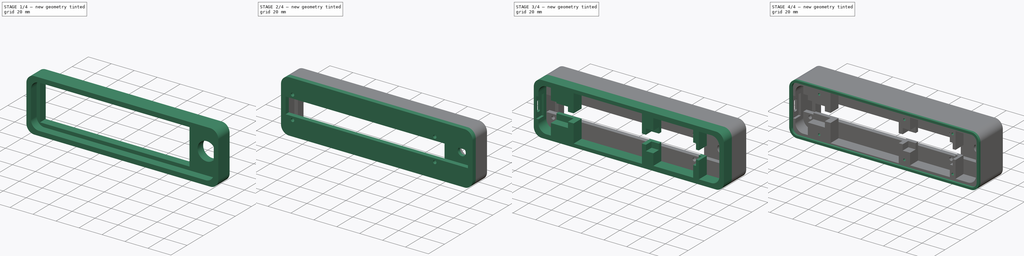
[diagram: build sequence overview — one tinted view per stage of 4, left to right]
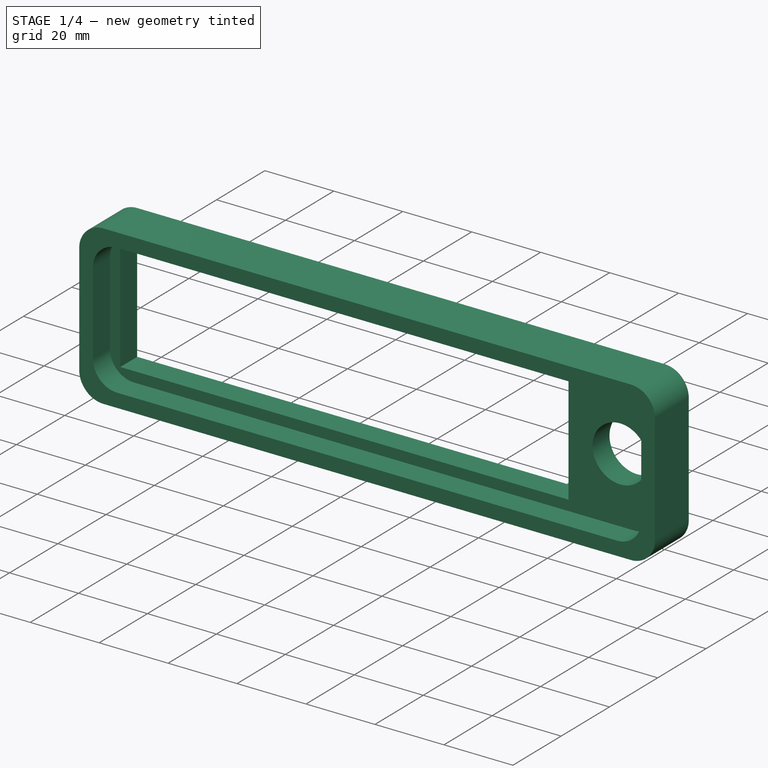
[diagram: stage 1 of 4 — iso view after this stage's code; geometry added in this stage tinted green]
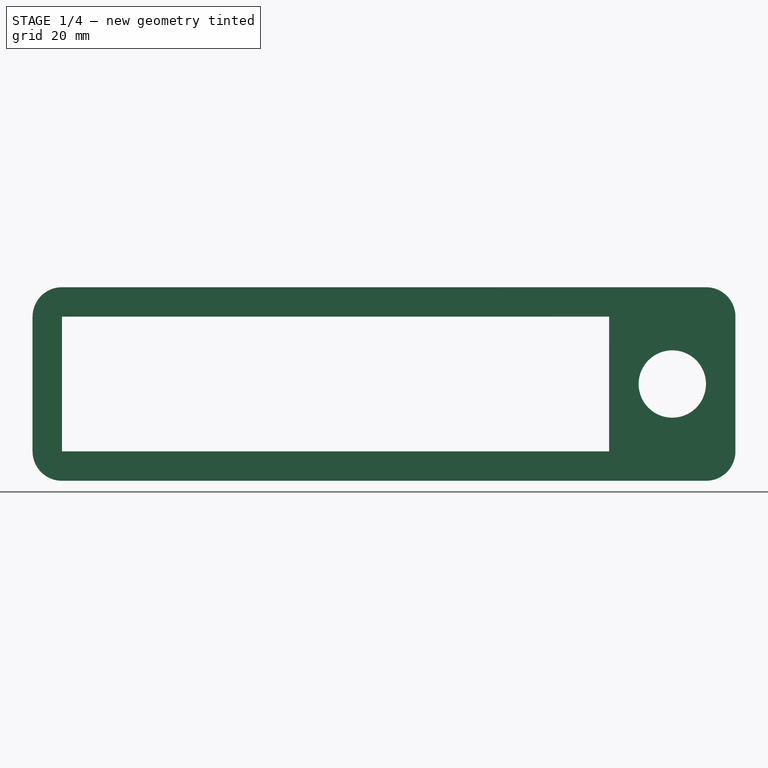
[diagram: stage 1 of 4 — front view after this stage's code; geometry added in this stage tinted green]
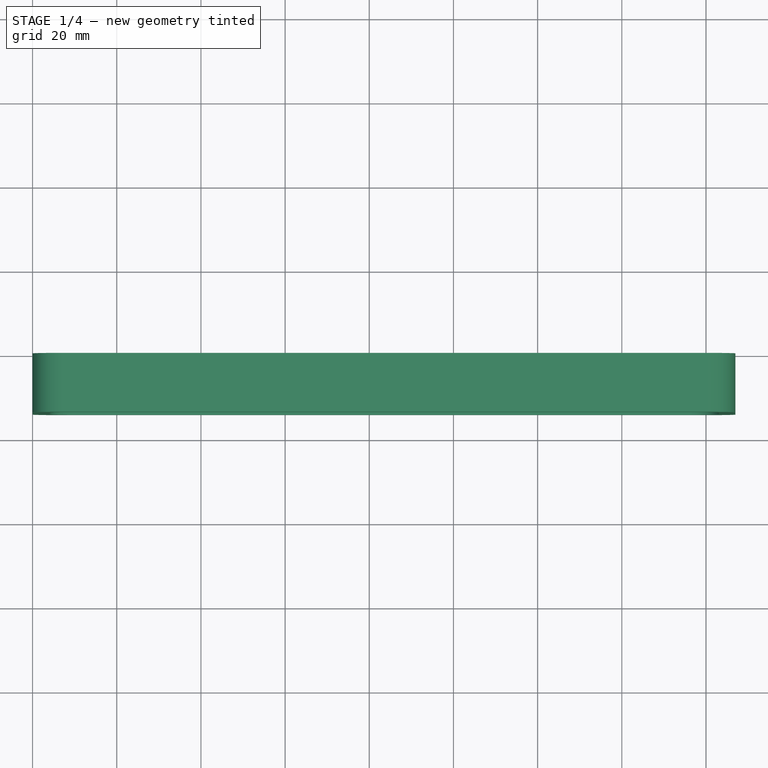
[diagram: stage 1 of 4 — top view after this stage's code; geometry added in this stage tinted green]
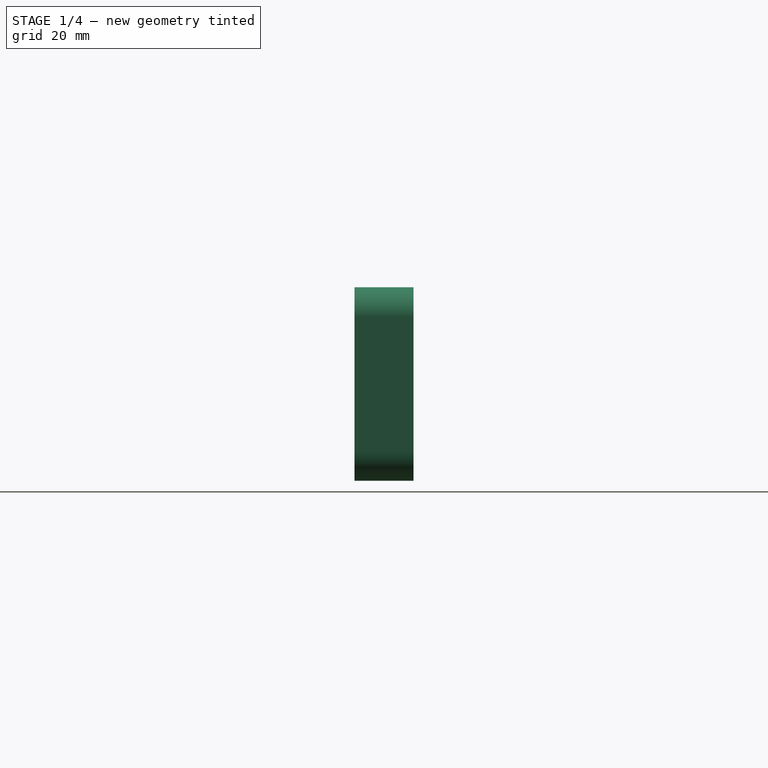
[diagram: stage 1 of 4 — right view after this stage's code; geometry added in this stage tinted green]
FCSTD DOCUMENT  (FreeCAD 0.20RUnknown)
Label: case
License: All rights reserved
LicenseURL: http://en.wikipedia.org/wiki/All_rights_reserved
objects: Sketcher::SketchObject×10, PartDesign::Pad×6, PartDesign::Pocket×3, PartDesign::Body×1
note: 29 computed .brp shape members not serialized (recipe doc carries the construction recipe); baked Part::Feature solids carry a one-line shape summary decoded from their .brp

FEATURE [Sketcher::SketchObject] Sketch
  FullyConstrained = true
  Placement = pos=(0,0,0) rot=(1,0,0;1.5708rad)
  sketch-geometry (15):
    g0: ArcOfCircle CenterX=7 CenterY=-7 CenterZ=0 NormalX=0 NormalY=0 NormalZ=1 AngleXU=0 Radius=7 StartAngle=1.5708 EndAngle=3.14159
    g1: LineSegment StartX=7 StartY=0 StartZ=0 EndX=160 EndY=0 EndZ=0
    g2: ArcOfCircle CenterX=160 CenterY=-7 CenterZ=0 NormalX=0 NormalY=0 NormalZ=1 AngleXU=0 Radius=7 StartAngle=2e-16 EndAngle=1.5708
    g3: LineSegment StartX=167 StartY=-7 StartZ=0 EndX=167 EndY=-39 EndZ=0
    g4: ArcOfCircle CenterX=160 CenterY=-39 CenterZ=0 NormalX=0 NormalY=0 NormalZ=1 AngleXU=0 Radius=7 StartAngle=4.71239 EndAngle=6.28319
    g5: LineSegment StartX=160 StartY=-46 StartZ=0 EndX=7 EndY=-46 EndZ=0
    g6: ArcOfCircle CenterX=7 CenterY=-39 CenterZ=0 NormalX=0 NormalY=0 NormalZ=1 AngleXU=0 Radius=7 StartAngle=3.14159 EndAngle=4.71239
    g7: LineSegment StartX=0 StartY=-39 StartZ=0 EndX=0 EndY=-7 EndZ=0
    g8: GeomPoint X=0 Y=0 Z=0
    g9: GeomPoint X=167 Y=-46 Z=0
    g10: LineSegment StartX=7 StartY=-7 StartZ=0 EndX=137 EndY=-7 EndZ=0
    g11: LineSegment StartX=137 StartY=-7 StartZ=0 EndX=137 EndY=-39 EndZ=0
    g12: LineSegment StartX=137 StartY=-39 StartZ=0 EndX=7 EndY=-39 EndZ=0
    g13: LineSegment StartX=7 StartY=-39 StartZ=0 EndX=7 EndY=-7 EndZ=0
    g14: Circle CenterX=152 CenterY=-23 CenterZ=0 NormalX=0 NormalY=0 NormalZ=1 AngleXU=0 Radius=8
  constraints (38):
    c: Tangent(g0,g1) = 1.5708
    c: Tangent(g1,g2) = 1.5708
    c: Tangent(g2,g3) = 1.5708
    c: Tangent(g3,g4) = 1.5708
    c: Tangent(g4,g5) = 1.5708
    c: Tangent(g5,g6) = 1.5708
    c: Tangent(g6,g7) = 1.5708
    c: Tangent(g7,g0) = 1.5708
    c: Horizontal(g1)
    c: Horizontal(g5)
    c: Vertical(g3)
    c: Vertical(g7)
    c: Equal(g0,g2)
    c: Equal(g2,g4)
    c: Equal(g4,g6)
    c: PointOnObject(g8,g1)
    c: PointOnObject(g8,g7)
    c: PointOnObject(g9,g3)
    c: PointOnObject(g9,g5)
    c: Coincident(g10,g11)
    c: Coincident(g11,g12)
    c: Coincident(g12,g13)
    c: Coincident(g13,g10)
    c: Horizontal(g10)
    c: Horizontal(g12)
    c: Vertical(g11)
    c: Vertical(g13)
    c: DistanceY(g12,g10) = 32
    c: DistanceX(g10,g10) = 130
    c: DistanceY(g10,g0) = 7
    c: DistanceY(g5,g12) = 7
    c: DistanceX(g6,g12) = 7
    c: Radius(g0) = 7
    c: Diameter(g14) = 16
    c: DistanceX(g10,g14) = 15
    c: DistanceX(g14,g2) = 15
    c: DistanceY(g14,g2) = 16
    c: Coincident(g8,g-1)
FEATURE [PartDesign::Pad] Pad
  Direction = (0,-1,2e-16)
  Length = 7
  Length2 = 10
  Placement = pos=(0,0,0) rot=(1,0,0;1.5708rad)
  Profile = -> Sketch
  ReferenceAxis = -> Sketch [N_Axis]
  Type = 0
FEATURE [Sketcher::SketchObject] Sketch001
  FullyConstrained = true
  MapMode = 5
  Placement = pos=(0,-7,1.5e-15) rot=(1,0,0;1.5708rad)
  Support = -> [Pad]
FEATURE [Sketcher::SketchObject] Sketch002
  ExternalGeometry = -> [Pad]
  FullyConstrained = true
  MapMode = 5
  Placement = pos=(0,-7,1.5e-15) rot=(1,0,0;1.5708rad)
  Support = -> [Pad]
  sketch-geometry (20):
    g0: ArcOfCircle CenterX=7 CenterY=-7 CenterZ=0 NormalX=0 NormalY=0 NormalZ=1 AngleXU=0 Radius=7 StartAngle=1.5708 EndAngle=3.14159
    g1: LineSegment StartX=7 StartY=0 StartZ=0 EndX=160 EndY=0 EndZ=0
    g2: ArcOfCircle CenterX=160 CenterY=-7 CenterZ=0 NormalX=0 NormalY=0 NormalZ=1 AngleXU=0 Radius=7 StartAngle=1e-16 EndAngle=1.5708
    g3: LineSegment StartX=167 StartY=-7 StartZ=0 EndX=167 EndY=-39 EndZ=0
    g4: ArcOfCircle CenterX=160 CenterY=-39 CenterZ=0 NormalX=0 NormalY=0 NormalZ=1 AngleXU=0 Radius=7 StartAngle=4.71239 EndAngle=6.28319
    g5: LineSegment StartX=160 StartY=-46 StartZ=0 EndX=7 EndY=-46 EndZ=0
    g6: ArcOfCircle CenterX=7 CenterY=-39 CenterZ=0 NormalX=0 NormalY=0 NormalZ=1 AngleXU=0 Radius=7 StartAngle=3.14159 EndAngle=4.71239
    g7: LineSegment StartX=0 StartY=-39 StartZ=0 EndX=0 EndY=-7 EndZ=0
    g8: GeomPoint X=0 Y=0 Z=0
    g9: GeomPoint X=167 Y=-46 Z=0
    g10: ArcOfCircle CenterX=11 CenterY=-11 CenterZ=0 NormalX=0 NormalY=0 NormalZ=1 AngleXU=0 Radius=7 StartAngle=1.5708 EndAngle=3.14159
    g11: LineSegment StartX=11 StartY=-4 StartZ=0 EndX=156 EndY=-4 EndZ=0
    g12: ArcOfCircle CenterX=156 CenterY=-11 CenterZ=0 NormalX=0 NormalY=0 NormalZ=1 AngleXU=0 Radius=7 StartAngle=2e-16 EndAngle=1.5708
    g13: LineSegment StartX=163 StartY=-11 StartZ=0 EndX=163 EndY=-35 EndZ=0
    g14: ArcOfCircle CenterX=156 CenterY=-35 CenterZ=0 NormalX=0 NormalY=0 NormalZ=1 AngleXU=0 Radius=7 StartAngle=4.71239 EndAngle=6.28319
    g15: LineSegment StartX=156 StartY=-42 StartZ=0 EndX=11 EndY=-42 EndZ=0
    g16: ArcOfCircle CenterX=11 CenterY=-35 CenterZ=0 NormalX=0 NormalY=0 NormalZ=1 AngleXU=0 Radius=7 StartAngle=3.14159 EndAngle=4.71239
    g17: LineSegment StartX=4 StartY=-35 StartZ=0 EndX=4 EndY=-11 EndZ=0
    g18: GeomPoint X=4 Y=-4 Z=0
    g19: GeomPoint X=163 Y=-42 Z=0
  constraints (46):
    c: Tangent(g0,g1) = 1.5708
    c: Tangent(g1,g2) = 1.5708
    c: Tangent(g2,g3) = 1.5708
    c: Tangent(g3,g4) = 1.5708
    c: Tangent(g4,g5) = 1.5708
    c: Tangent(g5,g6) = 1.5708
    c: Tangent(g6,g7) = 1.5708
    c: Tangent(g7,g0) = 1.5708
    c: Horizontal(g1)
    c: Horizontal(g5)
    c: Vertical(g3)
    c: Vertical(g7)
    c: Equal(g0,g2)
    c: Equal(g2,g4)
    c: Equal(g4,g6)
    c: PointOnObject(g8,g1)
    c: PointOnObject(g8,g7)
    c: PointOnObject(g9,g3)
    c: PointOnObject(g9,g5)
    c: Coincident(g8,g-1)
    c: Radius(g4) = 7
    c: Coincident(g4,g-3)
    c: Tangent(g10,g11) = 1.5708
    c: Tangent(g11,g12) = 1.5708
    c: Tangent(g12,g13) = 1.5708
    c: Tangent(g13,g14) = 1.5708
    c: Tangent(g14,g15) = 1.5708
    c: Tangent(g15,g16) = 1.5708
    c: Tangent(g16,g17) = 1.5708
    c: Tangent(g17,g10) = 1.5708
    c: Horizontal(g11)
    c: Horizontal(g15)
    c: Vertical(g13)
    c: Vertical(g17)
    c: Equal(g10,g12)
    c: Equal(g12,g14)
    c: Equal(g14,g16)
    c: PointOnObject(g18,g11)
    c: PointOnObject(g18,g17)
    c: PointOnObject(g19,g13)
    c: PointOnObject(g19,g15)
    c: Radius(g14) = 7
    c: DistanceX(g13,g3) = 4
    c: DistanceY(g4,g14) = 4
    c: DistanceY(g10,g0) = 4
    c: DistanceX(g0,g10) = 4
FEATURE [PartDesign::Pad] Pad001
  BaseFeature = -> Pad
  Direction = (0,-1,4e-16)
  Length = 7
  Length2 = 10
  Placement = pos=(0,0,0) rot=(1,0,0;1.5708rad)
  Profile = -> Sketch002
  ReferenceAxis = -> Sketch002 [N_Axis]
  Type = 0
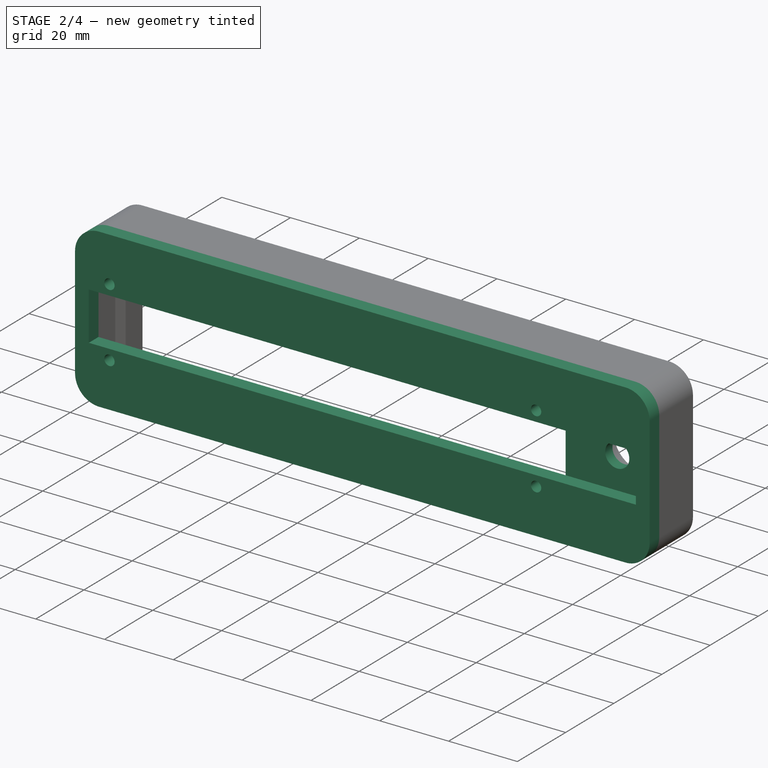
[diagram: stage 2 of 4 — iso view after this stage's code; geometry added in this stage tinted green]
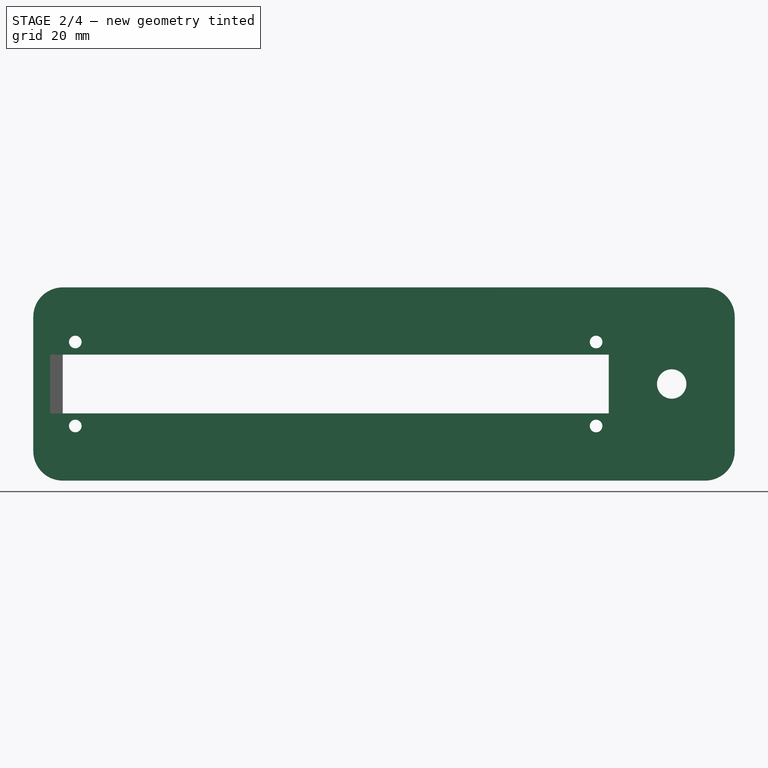
[diagram: stage 2 of 4 — front view after this stage's code; geometry added in this stage tinted green]
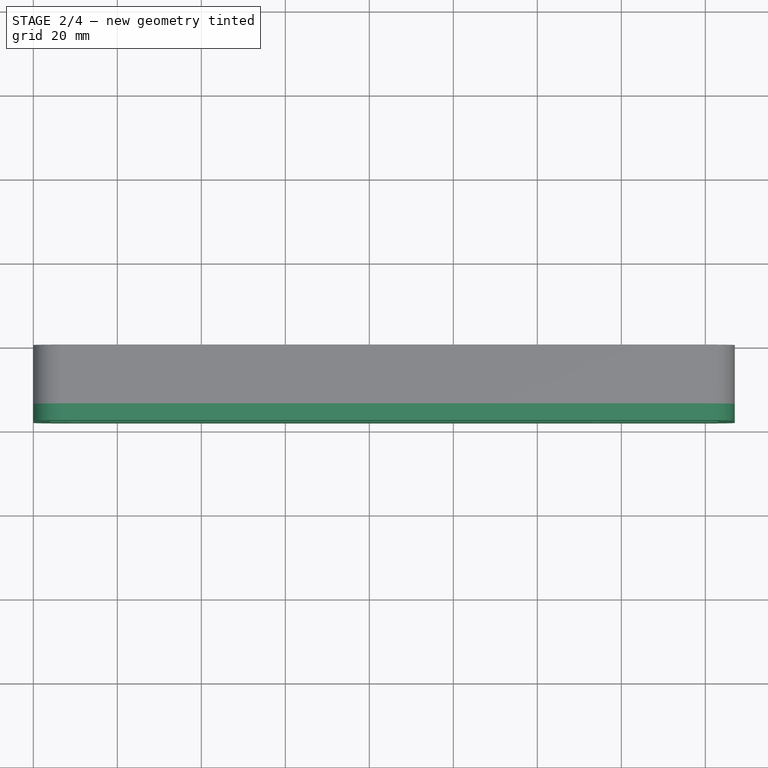
[diagram: stage 2 of 4 — top view after this stage's code; geometry added in this stage tinted green]
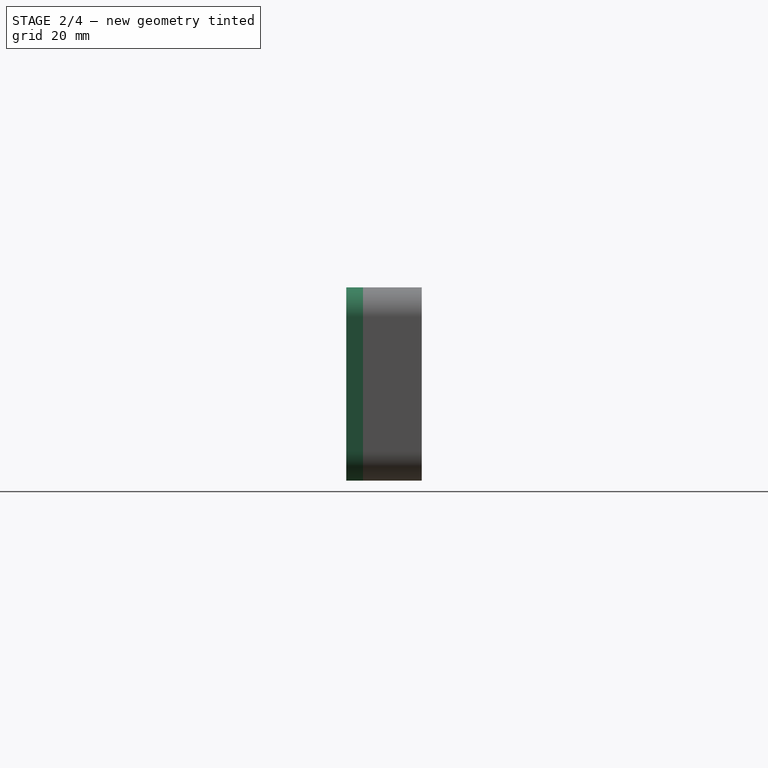
[diagram: stage 2 of 4 — right view after this stage's code; geometry added in this stage tinted green]
FEATURE [Sketcher::SketchObject] Sketch003
  ExternalGeometry = -> [Pad001]
  FullyConstrained = true
  MapMode = 5
  Placement = pos=(0,-7,1.5e-15) rot=(1,0,0;1.5708rad)
  Support = -> [Pad001]
  sketch-geometry (5):
    g0: LineSegment StartX=163 StartY=-11 StartZ=0 EndX=137 EndY=-11 EndZ=0
    g1: LineSegment StartX=137 StartY=-11 StartZ=0 EndX=137 EndY=-35 EndZ=0
    g2: LineSegment StartX=137 StartY=-35 StartZ=0 EndX=163 EndY=-35 EndZ=0
    g3: LineSegment StartX=163 StartY=-35 StartZ=0 EndX=163 EndY=-11 EndZ=0
    g4: Circle CenterX=152 CenterY=-23 CenterZ=0 NormalX=0 NormalY=0 NormalZ=1 AngleXU=0 Radius=3.5
  constraints (12):
    c: Coincident(g0,g1)
    c: Coincident(g1,g2)
    c: Coincident(g2,g3)
    c: Coincident(g3,g0)
    c: Horizontal(g0)
    c: Horizontal(g2)
    c: Vertical(g1)
    c: Coincident(g0,g-3)
    c: PointOnObject(g1,g-4)
    c: Coincident(g2,g-3)
    c: Coincident(g4,g-5)
    c: Diameter(g4) = 7
FEATURE [PartDesign::Pad] Pad002
  BaseFeature = -> Pad001
  Direction = (0,-1,4e-16)
  Length = 3
  Length2 = 10
  Placement = pos=(0,0,0) rot=(1,0,0;1.5708rad)
  Profile = -> Sketch003
  ReferenceAxis = -> Sketch003 [N_Axis]
  Type = 0
FEATURE [Sketcher::SketchObject] Sketch004
  ExternalGeometry = -> [Pad002]
  FullyConstrained = true
  MapMode = 5
  Placement = pos=(0,-14,6.3e-15) rot=(1,0,0;1.5708rad)
  Support = -> [Pad002]
  sketch-geometry (18):
    g0: ArcOfCircle CenterX=7 CenterY=-7 CenterZ=0 NormalX=0 NormalY=0 NormalZ=1 AngleXU=0 Radius=7 StartAngle=1.5708 EndAngle=3.14159
    g1: LineSegment StartX=7 StartY=3.6e-15 StartZ=0 EndX=160 EndY=3.6e-15 EndZ=0
    g2: ArcOfCircle CenterX=160 CenterY=-7 CenterZ=0 NormalX=0 NormalY=0 NormalZ=1 AngleXU=0 Radius=7 StartAngle=1e-16 EndAngle=1.5708
    g3: LineSegment StartX=167 StartY=-7 StartZ=0 EndX=167 EndY=-39 EndZ=0
    g4: ArcOfCircle CenterX=160 CenterY=-39 CenterZ=0 NormalX=0 NormalY=0 NormalZ=1 AngleXU=0 Radius=7 StartAngle=4.71239 EndAngle=6.28319
    g5: LineSegment StartX=160 StartY=-46 StartZ=0 EndX=7 EndY=-46 EndZ=0
    g6: ArcOfCircle CenterX=7 CenterY=-39 CenterZ=0 NormalX=0 NormalY=0 NormalZ=1 AngleXU=0 Radius=7 StartAngle=3.14159 EndAngle=4.71239
    g7: LineSegment StartX=-2.7e-15 StartY=-39 StartZ=0 EndX=-2.7e-15 EndY=-7 EndZ=0
    g8: GeomPoint X=-2.7e-15 Y=3.6e-15 Z=0
    g9: GeomPoint X=167 Y=-46 Z=0
    g10: LineSegment StartX=4 StartY=-16 StartZ=0 EndX=163 EndY=-16 EndZ=0
    g11: LineSegment StartX=163 StartY=-16 StartZ=0 EndX=163 EndY=-30 EndZ=0
    g12: LineSegment StartX=163 StartY=-30 StartZ=0 EndX=4 EndY=-30 EndZ=0
    g13: LineSegment StartX=4 StartY=-30 StartZ=0 EndX=4 EndY=-16 EndZ=0
    g14: Circle CenterX=10 CenterY=-13 CenterZ=0 NormalX=0 NormalY=0 NormalZ=1 AngleXU=0 Radius=1.5
    g15: Circle CenterX=10 CenterY=-33 CenterZ=0 NormalX=0 NormalY=0 NormalZ=1 AngleXU=0 Radius=1.5
    g16: Circle CenterX=134 CenterY=-13 CenterZ=0 NormalX=0 NormalY=0 NormalZ=1 AngleXU=0 Radius=1.5
    g17: Circle CenterX=134 CenterY=-33 CenterZ=0 NormalX=0 NormalY=0 NormalZ=1 AngleXU=0 Radius=1.5
  constraints (45):
    c: Tangent(g0,g1) = 1.5708
    c: Tangent(g1,g2) = 1.5708
    c: Tangent(g2,g3) = 1.5708
    c: Tangent(g3,g4) = 1.5708
    c: Tangent(g4,g5) = 1.5708
    c: Tangent(g5,g6) = 1.5708
    c: Tangent(g6,g7) = 1.5708
    c: Tangent(g7,g0) = 1.5708
    c: Horizontal(g1)
    c: Horizontal(g5)
    c: Vertical(g7)
    c: Equal(g0,g2)
    c: Equal(g2,g4)
    c: Equal(g4,g6)
    c: PointOnObject(g8,g1)
    c: PointOnObject(g8,g7)
    c: PointOnObject(g9,g3)
    c: PointOnObject(g9,g5)
    c: Coincident(g2,g-3)
    c: Coincident(g3,g-3)
    c: Coincident(g-4,g5)
    c: Coincident(g10,g11)
    c: Coincident(g11,g12)
    c: Coincident(g12,g13)
    c: Coincident(g13,g10)
    c: Horizontal(g10)
    c: Horizontal(g12)
    c: Vertical(g11)
    c: Vertical(g13)
    c: DistanceY(g10,g0) = 16
    c: DistanceY(g5,g12) = 16
    c: PointOnObject(g10,g-5)
    c: PointOnObject(g10,g-6)
    c: Diameter(g14) = 3
    c: DistanceX(g0,g14) = 3
    c: DistanceY(g14,g0) = 6
    c: Diameter(g15) = 3
    c: DistanceX(g6,g15) = 3
    c: DistanceY(g6,g15) = 6
    c: Diameter(g16) = 3
    c: Diameter(g17) = 3
    c: DistanceY(g16,g-7) = 6
    c: DistanceY(g-8,g17) = 6
    c: DistanceX(g17,g-8) = 3
    c: DistanceX(g16,g-7) = 3
FEATURE [PartDesign::Pad] Pad003
  BaseFeature = -> Pad002
  Direction = (0,-1,4e-16)
  Length = 4
  Length2 = 10
  Placement = pos=(0,0,0) rot=(1,0,0;1.5708rad)
  Profile = -> Sketch004
  ReferenceAxis = -> Sketch004 [N_Axis]
  Type = 0
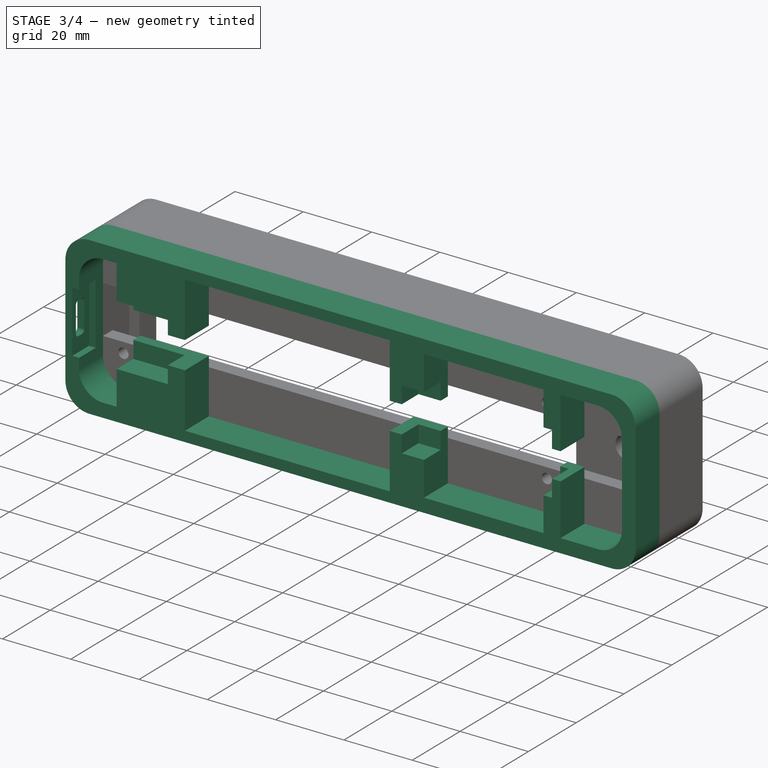
[diagram: stage 3 of 4 — iso view after this stage's code; geometry added in this stage tinted green]
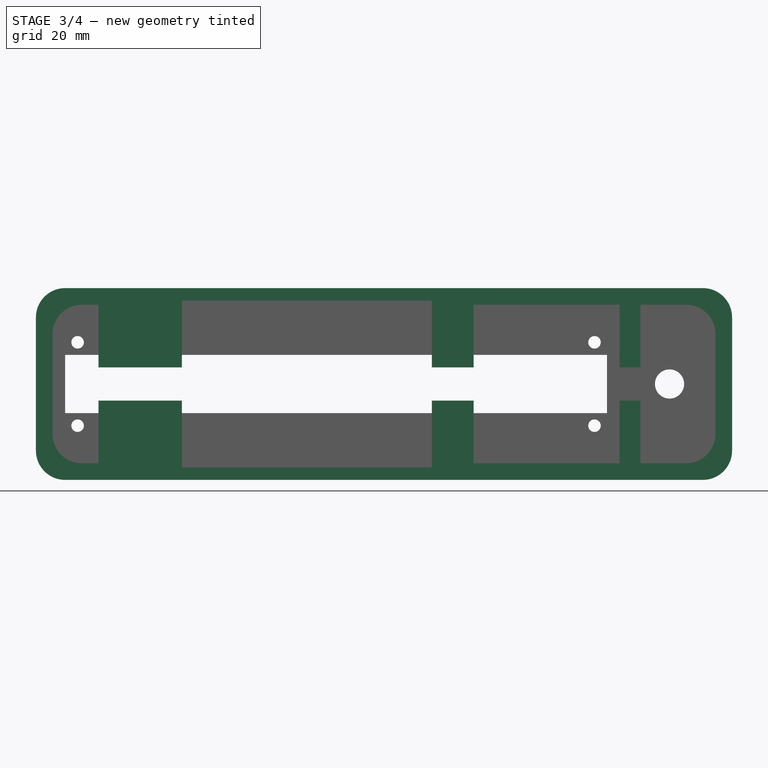
[diagram: stage 3 of 4 — front view after this stage's code; geometry added in this stage tinted green]
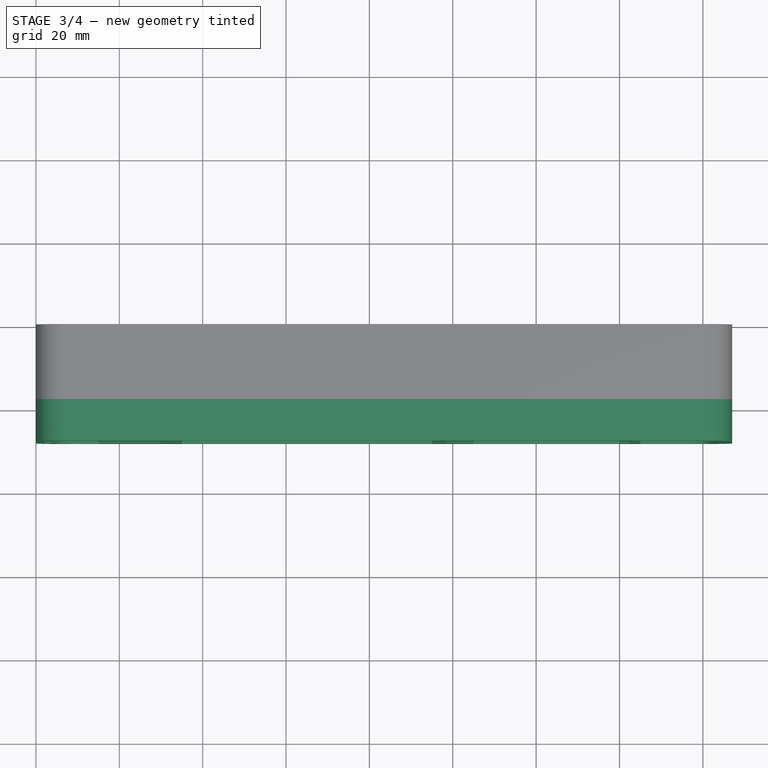
[diagram: stage 3 of 4 — top view after this stage's code; geometry added in this stage tinted green]
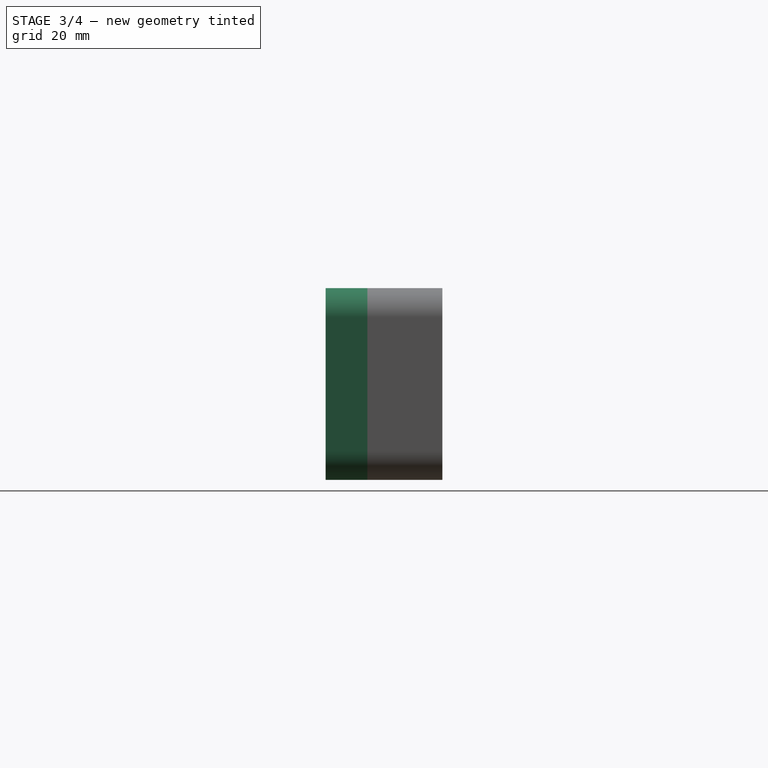
[diagram: stage 3 of 4 — right view after this stage's code; geometry added in this stage tinted green]
FEATURE [Sketcher::SketchObject] Sketch005
  ExternalGeometry = -> [Pad003]
  FullyConstrained = false
  MapMode = 5
  Placement = pos=(0,-18,7.6e-15) rot=(1,0,0;1.5708rad)
  Support = -> [Pad003]
  sketch-geometry (44):
    g0: ArcOfCircle CenterX=7 CenterY=-7 CenterZ=0 NormalX=0 NormalY=0 NormalZ=1 AngleXU=0 Radius=7 StartAngle=1.5708 EndAngle=3.14159
    g1: LineSegment StartX=7 StartY=-9e-16 StartZ=0 EndX=160 EndY=-9e-16 EndZ=0
    g2: ArcOfCircle CenterX=160 CenterY=-7 CenterZ=0 NormalX=0 NormalY=0 NormalZ=1 AngleXU=0 Radius=7 StartAngle=1e-16 EndAngle=1.5708
    g3: LineSegment StartX=167 StartY=-7 StartZ=0 EndX=167 EndY=-39 EndZ=0
    g4: ArcOfCircle CenterX=160 CenterY=-39 CenterZ=0 NormalX=0 NormalY=0 NormalZ=1 AngleXU=0 Radius=7 StartAngle=4.71239 EndAngle=6.28319
    g5: LineSegment StartX=160 StartY=-46 StartZ=0 EndX=7 EndY=-46 EndZ=0
    g6: ArcOfCircle CenterX=7 CenterY=-39 CenterZ=0 NormalX=0 NormalY=0 NormalZ=1 AngleXU=0 Radius=7 StartAngle=3.14159 EndAngle=4.71239
    g7: LineSegment StartX=-2.7e-15 StartY=-39 StartZ=0 EndX=-2.7e-15 EndY=-7 EndZ=0
    g8: GeomPoint X=-2.7e-15 Y=-9e-16 Z=0
    g9: GeomPoint X=167 Y=-46 Z=0
    g10: ArcOfCircle CenterX=11 CenterY=-11 CenterZ=0 NormalX=0 NormalY=0 NormalZ=1 AngleXU=0 Radius=7 StartAngle=1.5708 EndAngle=3.14159
    g11: ArcOfCircle CenterX=11 CenterY=-35 CenterZ=0 NormalX=0 NormalY=0 NormalZ=1 AngleXU=0 Radius=7 StartAngle=3.14159 EndAngle=4.71239
    g12: LineSegment StartX=4 StartY=-35 StartZ=0 EndX=4 EndY=-11 EndZ=0
    g13: GeomPoint X=4 Y=-4 Z=0
    g14: GeomPoint X=163 Y=-42 Z=0
    g15: LineSegment StartX=11 StartY=-4 StartZ=0 EndX=15 EndY=-4 EndZ=0
    g16: LineSegment StartX=15 StartY=-4 StartZ=0 EndX=15 EndY=-19 EndZ=0
    g17: LineSegment StartX=11 StartY=-42 StartZ=0 EndX=15 EndY=-42 EndZ=0
    g18: LineSegment StartX=15 StartY=-42 StartZ=0 EndX=15 EndY=-27 EndZ=0
    g19: LineSegment StartX=163 StartY=-11 StartZ=0 EndX=163 EndY=-35 EndZ=0
    g20: ArcOfCircle CenterX=156 CenterY=-11 CenterZ=0 NormalX=0 NormalY=0 NormalZ=1 AngleXU=0 Radius=7 StartAngle=0 EndAngle=1.5708
    g21: ArcOfCircle CenterX=156 CenterY=-35 CenterZ=0 NormalX=0 NormalY=0 NormalZ=1 AngleXU=0 Radius=7 StartAngle=4.71239 EndAngle=6.28319
    g22: LineSegment StartX=15 StartY=-19 StartZ=0 EndX=35 EndY=-19 EndZ=0
    g23: LineSegment StartX=95 StartY=-19 StartZ=0 EndX=105 EndY=-19 EndZ=0
    g24: LineSegment StartX=105 StartY=-19 StartZ=0 EndX=105 EndY=-4 EndZ=0
    g25: LineSegment StartX=95 StartY=-27 StartZ=0 EndX=105 EndY=-27 EndZ=0
    g26: LineSegment StartX=105 StartY=-27 StartZ=0 EndX=105 EndY=-42 EndZ=0
    g27: LineSegment StartX=15 StartY=-27 StartZ=0 EndX=35 EndY=-27 EndZ=0
    g28: LineSegment StartX=35 StartY=-3 StartZ=0 EndX=95 EndY=-3 EndZ=0
    g29: LineSegment StartX=35 StartY=-43 StartZ=0 EndX=95 EndY=-43 EndZ=0
    g30: LineSegment StartX=35 StartY=-3 StartZ=0 EndX=35 EndY=-19 EndZ=0
    g31: LineSegment StartX=35 StartY=-27 StartZ=0 EndX=35 EndY=-43 EndZ=0
    g32: LineSegment StartX=95 StartY=-3 StartZ=0 EndX=95 EndY=-19 EndZ=0
    g33: LineSegment StartX=95 StartY=-27 StartZ=0 EndX=95 EndY=-43 EndZ=0
    g34: LineSegment StartX=105 StartY=-4 StartZ=0 EndX=140 EndY=-4 EndZ=0
    g35: LineSegment StartX=140 StartY=-4 StartZ=0 EndX=140 EndY=-19 EndZ=0
    g36: LineSegment StartX=140 StartY=-19 StartZ=0 EndX=145 EndY=-19 EndZ=0
    g37: LineSegment StartX=145 StartY=-19 StartZ=0 EndX=145 EndY=-4 EndZ=0
    g38: LineSegment StartX=145 StartY=-4 StartZ=0 EndX=156 EndY=-4 EndZ=0
    g39: LineSegment StartX=105 StartY=-42 StartZ=0 EndX=140 EndY=-42 EndZ=0
    g40: LineSegment StartX=140 StartY=-42 StartZ=0 EndX=140 EndY=-27 EndZ=0
    g41: LineSegment StartX=140 StartY=-27 StartZ=0 EndX=145 EndY=-27 EndZ=0
    g42: LineSegment StartX=145 StartY=-27 StartZ=0 EndX=145 EndY=-42 EndZ=0
    g43: LineSegment StartX=145 StartY=-42 StartZ=0 EndX=156 EndY=-42 EndZ=0
  constraints (118):
    c: Tangent(g0,g1) = 1.5708
    c: Tangent(g1,g2) = 1.5708
    c: Tangent(g2,g3) = 1.5708
    c: Tangent(g3,g4) = 1.5708
    c: Tangent(g4,g5) = 1.5708
    c: Tangent(g5,g6) = 1.5708
    c: Tangent(g6,g7) = 1.5708
    c: Tangent(g7,g0) = 1.5708
    c: Horizontal(g1)
    c: Horizontal(g5)
    c: Vertical(g7)
    c: Equal(g2,g4)
    c: Equal(g4,g6)
    c: PointOnObject(g8,g1)
    c: PointOnObject(g8,g7)
    c: PointOnObject(g9,g3)
    c: PointOnObject(g9,g5)
    c: Radius(g0) = 7
    c: Coincident(g2,g-3)
    c: Coincident(g3,g-3)
    c: Coincident(g0,g-5)
    c: Tangent(g11,g12) = 1.5708
    c: Tangent(g12,g10) = 1.5708
    c: Vertical(g12)
    c: PointOnObject(g13,g12)
    c: DistanceY(g4,g21) = 4
    c: DistanceX(g0,g10) = 4
    c: Tangent(g10,g15) = 1.5708
    c: Coincident(g15,g16)
    c: Vertical(g16)
    c: Tangent(g11,g17) = -1.5708
    c: Coincident(g17,g18)
    c: Vertical(g18)
    c: Equal(g15,g17)
    c: DistanceY(g16,g16) = 15
    c: DistanceX(g16,g18) = 0
    c: DistanceY(g10,g0) = 4
    c: Horizontal(g15)
    c: DistanceX(g0,g15) = 15
    c: Vertical(g19)
    c: Coincident(g20,g19)
    c: Radius(g20) = 7
    c: DistanceY(g20,g19) = 0
    c: DistanceX(g20,g20) = 0
    c: Coincident(g21,g19)
    c: Radius(g21) = 7
    c: DistanceY(g21,g19) = 0
    c: DistanceX(g19,g2) = 4
    c: DistanceY(g17,g11) = 0
    c: Radius(g11) = 7
    c: Coincident(g22,g16)
    c: Horizontal(g22)
    c: DistanceX(g22,g22) = 20
    c: Coincident(g23,g24)
    c: Vertical(g24)
    c: Horizontal(g23)
    c: DistanceX(g21,g21) = 0
    c: Horizontal(g25)
    c: Coincident(g25,g26)
    c: Vertical(g26)
    c: Coincident(g27,g18)
    c: Horizontal(g27)
    c: DistanceY(g5,g11) = 4
    c: Equal(g22,g27)
    c: Equal(g23,g25)
    c: DistanceX(g23,g23) = 10
    c: DistanceX(g28,g28) = 60
    c: Horizontal(g28)
    c: Horizontal(g29)
    c: DistanceY(g29,g28) = 40  'Battery H'
    c: Coincident(g30,g28)
    c: Coincident(g30,g22)
    c: Coincident(g31,g27)
    c: Coincident(g31,g29)
    c: Vertical(g31)
    c: Vertical(g30)
    c: Coincident(g32,g28)
    c: Coincident(g32,g23)
    c: Coincident(g33,g25)
    c: Coincident(g33,g29)
    c: Vertical(g32)
    c: Vertical(g33)
    c: Equal(g32,g33)
    c: Equal(g24,g26)
    c: Equal(g19,g12)
    c: Equal(g30,g31)
    c: Equal(g28,g29)
    c: Equal(g31,g33)
    c: Coincident(g24,g34)
    c: Horizontal(g34)
    c: Coincident(g34,g35)
    c: Vertical(g35)
    c: Coincident(g35,g36)
    c: Horizontal(g36)
    c: Coincident(g36,g37)
    c: Vertical(g37)
    c: Coincident(g37,g38)
    c: Coincident(g38,g20)
    c: Horizontal(g38)
    c: Coincident(g26,g39)
    c: Horizontal(g39)
    c: Coincident(g39,g40)
    c: Vertical(g40)
    c: Coincident(g40,g41)
    c: Horizontal(g41)
    c: Coincident(g41,g42)
    c: Vertical(g42)
    c: Coincident(g42,g43)
    c: Coincident(g43,g21)
    c: Horizontal(g43)
    c: Equal(g35,g40)
    c: Equal(g36,g41)
    c: Equal(g34,g39)
    c: Equal(g18,g16)
    c: DistanceX(g36,g36) = 5
    c: DistanceX(g34,g34) = 35
    c: Equal(g24,g35)
    c: Equal(g35,g37)
FEATURE [PartDesign::Pad] Pad004
  BaseFeature = -> Pad003
  Direction = (0,-1,4e-16)
  Length = 10
  Length2 = 10
  Placement = pos=(0,0,0) rot=(1,0,0;1.5708rad)
  Profile = -> Sketch005
  ReferenceAxis = -> Sketch005 [N_Axis]
  Type = 0
FEATURE [Sketcher::SketchObject] Sketch006
  ExternalGeometry = -> [Pad004]
  FullyConstrained = true
  MapMode = 5
  Placement = pos=(0,-28,1.59e-14) rot=(1,0,0;1.5708rad)
  Support = -> [Pad004]
  sketch-geometry (14):
    g0: LineSegment StartX=2 StartY=-14 StartZ=0 EndX=30 EndY=-14 EndZ=0
    g1: LineSegment StartX=30 StartY=-32 StartZ=0 EndX=2 EndY=-32 EndZ=0
    g2: LineSegment StartX=2 StartY=-32 StartZ=0 EndX=2 EndY=-14 EndZ=0
    g3: LineSegment StartX=98.5 StartY=-14 StartZ=0 EndX=142.5 EndY=-14 EndZ=0
    g4: LineSegment StartX=142.5 StartY=-32 StartZ=0 EndX=98.5 EndY=-32 EndZ=0
    g5: LineSegment StartX=98.5 StartY=-32 StartZ=0 EndX=98.5 EndY=-14 EndZ=0
    g6: LineSegment StartX=142.5 StartY=-14 StartZ=0 EndX=142.5 EndY=-23 EndZ=0
    g7: LineSegment StartX=142.5 StartY=-23 StartZ=0 EndX=142.5 EndY=-32 EndZ=0
    g8: LineSegment StartX=140 StartY=-19 StartZ=0 EndX=140 EndY=-23 EndZ=0
    g9: LineSegment StartX=140 StartY=-23 StartZ=0 EndX=140 EndY=-27 EndZ=0
    g10: LineSegment StartX=35 StartY=-19 StartZ=0 EndX=35 EndY=-23 EndZ=0
    g11: LineSegment StartX=35 StartY=-23 StartZ=0 EndX=35 EndY=-27 EndZ=0
    g12: LineSegment StartX=30 StartY=-14 StartZ=0 EndX=30 EndY=-23 EndZ=0
    g13: LineSegment StartX=30 StartY=-23 StartZ=0 EndX=30 EndY=-32 EndZ=0
  constraints (40):
    c: Coincident(g0,g12)
    c: Coincident(g13,g1)
    c: Coincident(g1,g2)
    c: Coincident(g2,g0)
    c: Horizontal(g0)
    c: Horizontal(g1)
    c: Vertical(g2)
    c: DistanceY(g2,g2) = 18  'Charging H'
    c: DistanceX(g0,g0) = 28  'Charging W'
    c: Coincident(g3,g6)
    c: Coincident(g7,g4)
    c: Coincident(g4,g5)
    c: Coincident(g5,g3)
    c: Horizontal(g3)
    c: Horizontal(g4)
    c: Vertical(g5)
    c: DistanceX(g3,g3) = 44  'Arduino W'
    c: DistanceY(g5,g5) = 18  'Arduion H'
    c: DistanceX(g-4,g3) = 2.5
    c: Coincident(g6,g7)
    c: Vertical(g6)
    c: Vertical(g7)
    c: Equal(g7,g6)
    c: Coincident(g8,g-4)
    c: Coincident(g9,g-5)
    c: Coincident(g8,g9)
    c: Equal(g8,g9)
    c: DistanceY(g6,g8) = 0
    c: DistanceX(g-1,g0) = 2
    c: Coincident(g10,g-6)
    c: Coincident(g11,g-7)
    c: Coincident(g10,g11)
    c: Equal(g11,g10)
    c: Coincident(g12,g13)
    c: Vertical(g12)
    c: Vertical(g13)
    c: Equal(g12,g13)
    c: DistanceY(g12,g10) = 0
    c: Vertical(g10)
    c: Vertical(g8)
FEATURE [PartDesign::Pocket] Pocket
  BaseFeature = -> Pad004
  Direction = (0,1,-7e-16)
  Length = 7
  Length2 = 5
  Placement = pos=(0,0,0) rot=(1,0,0;1.5708rad)
  Profile = -> Sketch006
  ReferenceAxis = -> Sketch006 [N_Axis]
  Type = 0
FEATURE [Sketcher::SketchObject] Sketch007
  ExternalGeometry = -> [Pocket]
  FullyConstrained = true
  MapMode = 5
  Placement = pos=(-2.7e-15,0,0) rot=(0.707107,0,-0.707107;3.14159rad)
  Support = -> [Pocket]
  sketch-geometry (14):
    g0: ArcOfCircle CenterX=19.25 CenterY=25.5 CenterZ=0 NormalX=0 NormalY=0 NormalZ=1 AngleXU=0 Radius=1 StartAngle=1.5708 EndAngle=3.14159
    g1: ArcOfCircle CenterX=26.75 CenterY=25.5 CenterZ=0 NormalX=0 NormalY=0 NormalZ=1 AngleXU=0 Radius=1 StartAngle=1.3e-15 EndAngle=1.5708
    g2: LineSegment StartX=27.75 StartY=25.5 StartZ=0 EndX=27.75 EndY=24 EndZ=0
    g3: ArcOfCircle CenterX=26.75 CenterY=24 CenterZ=0 NormalX=0 NormalY=0 NormalZ=1 AngleXU=0 Radius=1 StartAngle=4.71239 EndAngle=6.28319
    g4: LineSegment StartX=26.75 StartY=23 StartZ=0 EndX=19.25 EndY=23 EndZ=0
    g5: ArcOfCircle CenterX=19.25 CenterY=24 CenterZ=0 NormalX=0 NormalY=0 NormalZ=1 AngleXU=0 Radius=1 StartAngle=3.14159 EndAngle=4.71239
    g6: GeomPoint X=18.25 Y=26.5 Z=0
    g7: GeomPoint X=27.75 Y=23 Z=0
    g8: LineSegment StartX=18.25 StartY=24 StartZ=0 EndX=18.25 EndY=24.75 EndZ=0
    g9: LineSegment StartX=18.25 StartY=24.75 StartZ=0 EndX=18.25 EndY=25.5 EndZ=0
    g10: LineSegment StartX=7 StartY=28 StartZ=0 EndX=23 EndY=28 EndZ=0
    g11: LineSegment StartX=23 StartY=28 StartZ=0 EndX=39 EndY=28 EndZ=0
    g12: LineSegment StartX=19.25 StartY=26.5 StartZ=0 EndX=23 EndY=26.5 EndZ=0
    g13: LineSegment StartX=23 StartY=26.5 StartZ=0 EndX=26.75 EndY=26.5 EndZ=0
  constraints (35):
    c: Tangent(g0,g12) = 1.5708
    c: Tangent(g13,g1) = 1.5708
    c: Tangent(g1,g2) = 1.5708
    c: Tangent(g2,g3) = 1.5708
    c: Tangent(g3,g4) = 1.5708
    c: Tangent(g4,g5) = 1.5708
    c: Tangent(g5,g8) = 1.5708
    c: Tangent(g9,g0) = 1.5708
    c: Horizontal(g4)
    c: Vertical(g2)
    c: Equal(g0,g1)
    c: Equal(g1,g3)
    c: Equal(g3,g5)
    c: PointOnObject(g7,g2)
    c: PointOnObject(g7,g4)
    c: DistanceY(g4,g0) = 3.5
    c: DistanceX(g5,g2) = 9.5
    c: Coincident(g8,g9)
    c: Vertical(g8)
    c: Vertical(g9)
    c: PointOnObject(g6,g9)
    c: Equal(g9,g8)
    c: Coincident(g10,g-3)
    c: Coincident(g11,g-3)
    c: Coincident(g10,g11)
    c: Equal(g11,g10)
    c: Horizontal(g11)
    c: Coincident(g12,g13)
    c: Horizontal(g12)
    c: Horizontal(g13)
    c: PointOnObject(g6,g12)
    c: Equal(g13,g12)
    c: DistanceX(g12,g10) = 0
    c: Radius(g0) = 1
    c: DistanceY(g4,g10) = 5
FEATURE [PartDesign::Pocket] Pocket001
  BaseFeature = -> Pocket
  Direction = (1,0,2e-16)
  Length = 10
  Length2 = 5
  Placement = pos=(0,0,0) rot=(1,0,0;1.5708rad)
  Profile = -> Sketch007
  ReferenceAxis = -> Sketch007 [N_Axis]
  Type = 0
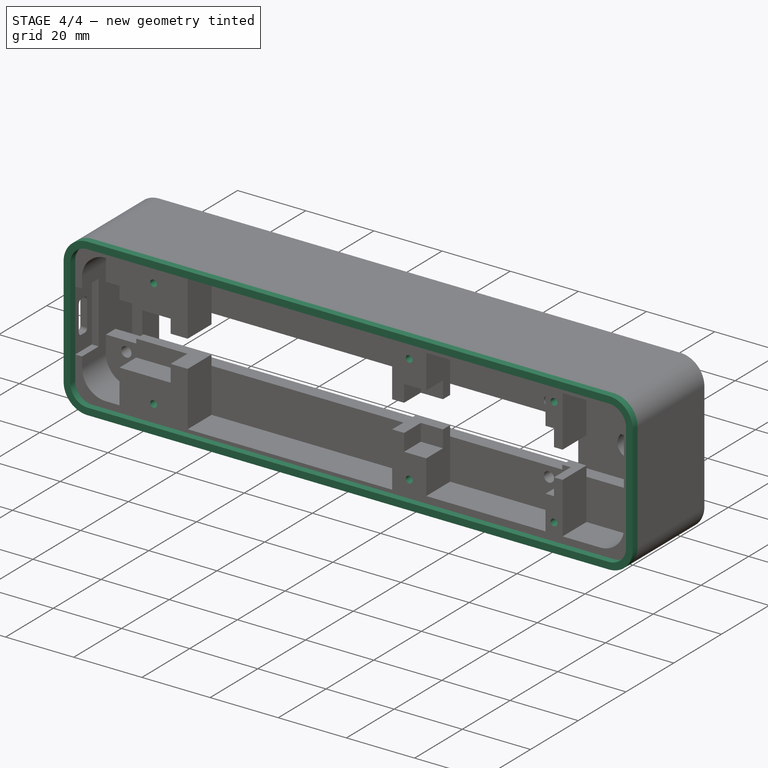
[diagram: stage 4 of 4 — iso view after this stage's code; geometry added in this stage tinted green]
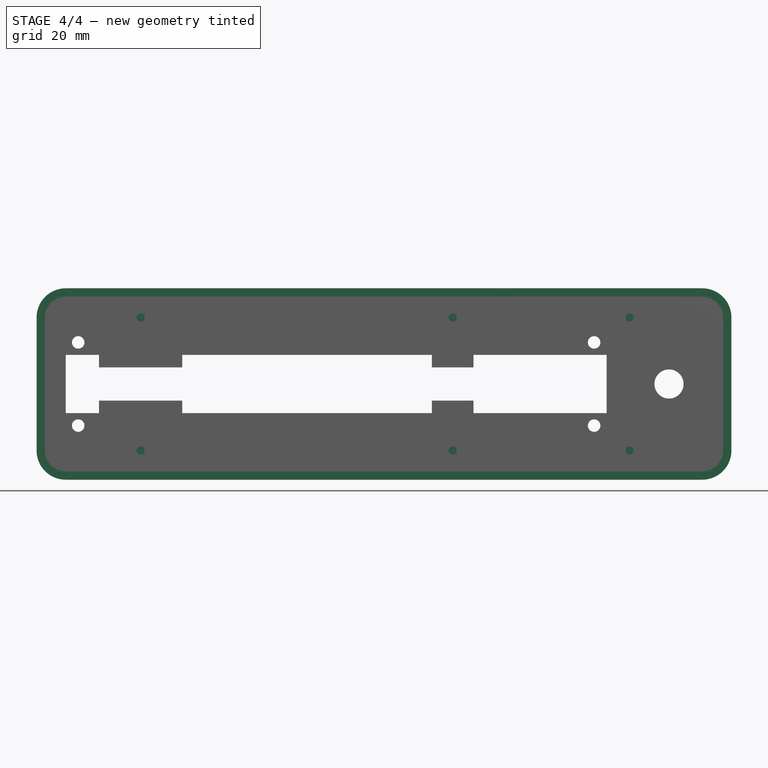
[diagram: stage 4 of 4 — front view after this stage's code; geometry added in this stage tinted green]
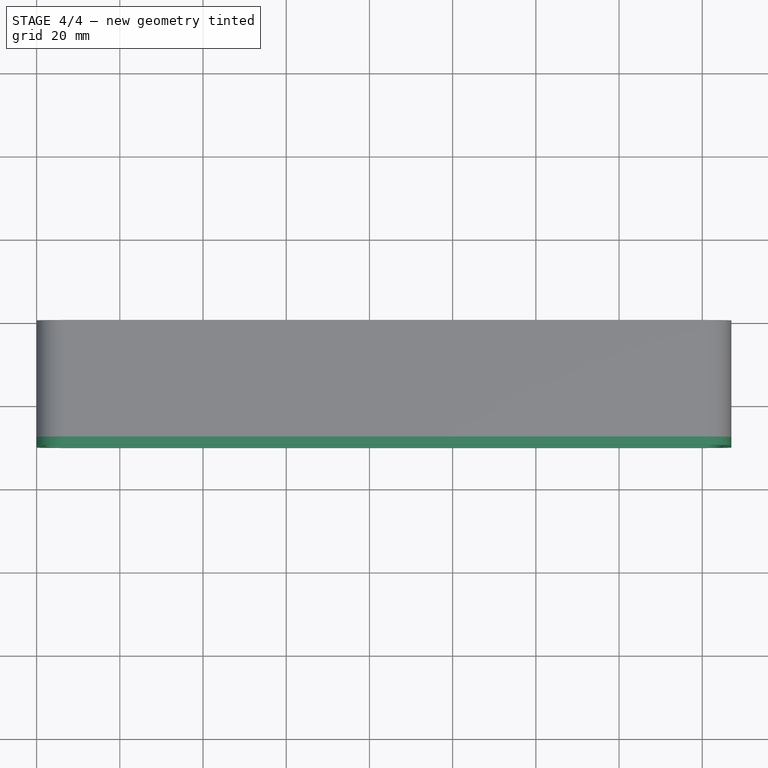
[diagram: stage 4 of 4 — top view after this stage's code; geometry added in this stage tinted green]
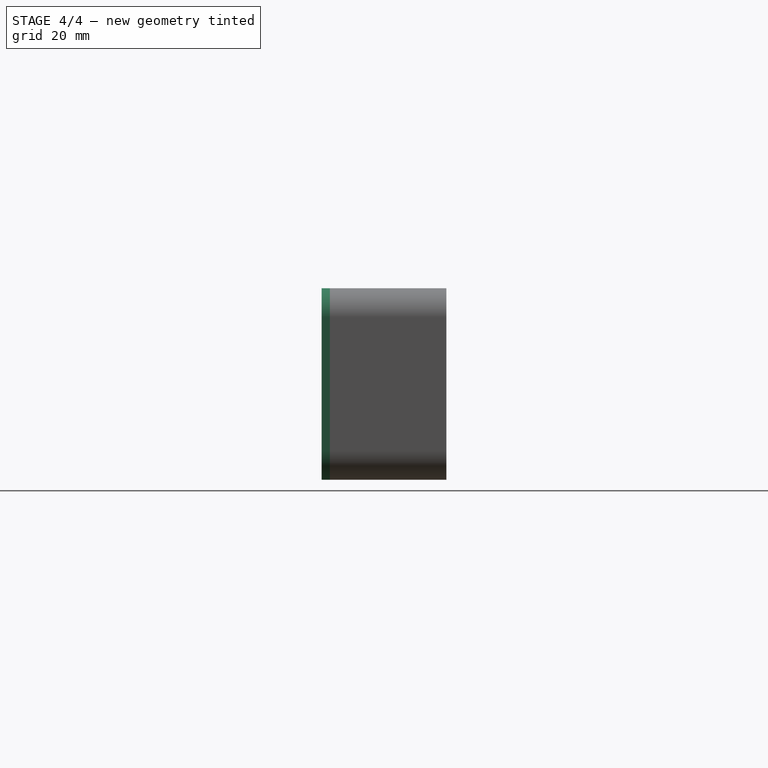
[diagram: stage 4 of 4 — right view after this stage's code; geometry added in this stage tinted green]
FEATURE [Sketcher::SketchObject] Sketch008
  ExternalGeometry = -> [Pocket001]
  FullyConstrained = true
  MapMode = 5
  Placement = pos=(0,-28,2.21e-14) rot=(1,0,0;1.5708rad)
  Support = -> [Pocket001]
  sketch-geometry (20):
    g0: ArcOfCircle CenterX=7 CenterY=-7 CenterZ=0 NormalX=0 NormalY=0 NormalZ=1 AngleXU=0 Radius=7 StartAngle=1.5708 EndAngle=3.14159
    g1: LineSegment StartX=7 StartY=-1.7e-15 StartZ=0 EndX=160 EndY=-1.7e-15 EndZ=0
    g2: ArcOfCircle CenterX=160 CenterY=-7 CenterZ=0 NormalX=0 NormalY=0 NormalZ=1 AngleXU=0 Radius=7 StartAngle=-4.21e-13 EndAngle=1.5708
    g3: LineSegment StartX=167 StartY=-7 StartZ=0 EndX=167 EndY=-39 EndZ=0
    g4: ArcOfCircle CenterX=160 CenterY=-39 CenterZ=0 NormalX=0 NormalY=0 NormalZ=1 AngleXU=0 Radius=7 StartAngle=4.71239 EndAngle=6.28319
    g5: LineSegment StartX=160 StartY=-46 StartZ=0 EndX=7 EndY=-46 EndZ=0
    g6: ArcOfCircle CenterX=7 CenterY=-39 CenterZ=0 NormalX=0 NormalY=0 NormalZ=1 AngleXU=0 Radius=7 StartAngle=3.14159 EndAngle=4.71239
    g7: LineSegment StartX=1.96021e-11 StartY=-39 StartZ=0 EndX=1.96021e-11 EndY=-7 EndZ=0
    g8: GeomPoint X=1.96023e-11 Y=-1.7e-15 Z=0
    g9: GeomPoint X=167 Y=-46 Z=0
    g10: ArcOfCircle CenterX=7 CenterY=-7 CenterZ=0 NormalX=0 NormalY=0 NormalZ=1 AngleXU=0 Radius=5 StartAngle=1.5708 EndAngle=3.14159
    g11: LineSegment StartX=7 StartY=-2 StartZ=0 EndX=160 EndY=-2 EndZ=0
    g12: ArcOfCircle CenterX=160 CenterY=-7 CenterZ=0 NormalX=0 NormalY=0 NormalZ=1 AngleXU=0 Radius=5 StartAngle=-1.8e-15 EndAngle=1.5708
    g13: LineSegment StartX=165 StartY=-7 StartZ=0 EndX=165 EndY=-39 EndZ=0
    g14: ArcOfCircle CenterX=160 CenterY=-39 CenterZ=0 NormalX=0 NormalY=0 NormalZ=1 AngleXU=0 Radius=5 StartAngle=4.71239 EndAngle=6.28319
    g15: LineSegment StartX=160 StartY=-44 StartZ=0 EndX=7 EndY=-44 EndZ=0
    g16: ArcOfCircle CenterX=7 CenterY=-39 CenterZ=0 NormalX=0 NormalY=0 NormalZ=1 AngleXU=0 Radius=5 StartAngle=3.14159 EndAngle=4.71239
    g17: LineSegment StartX=2 StartY=-39 StartZ=0 EndX=2 EndY=-7 EndZ=0
    g18: GeomPoint X=2 Y=-2 Z=0
    g19: GeomPoint X=165 Y=-44 Z=0
  constraints (45):
    c: Tangent(g0,g1) = 1.5708
    c: Tangent(g1,g2) = 1.5708
    c: Tangent(g2,g3) = 1.5708
    c: Tangent(g3,g4) = 1.5708
    c: Tangent(g4,g5) = 1.5708
    c: Tangent(g5,g6) = 1.5708
    c: Tangent(g6,g7) = 1.5708
    c: Tangent(g7,g0) = 1.5708
    c: Horizontal(g1)
    c: Horizontal(g5)
    c: Vertical(g3)
    c: Vertical(g7)
    c: Equal(g0,g2)
    c: Equal(g2,g4)
    c: PointOnObject(g8,g1)
    c: PointOnObject(g8,g7)
    c: PointOnObject(g9,g3)
    c: PointOnObject(g9,g5)
    c: Tangent(g10,g11) = 1.5708
    c: Tangent(g11,g12) = 1.5708
    c: Tangent(g12,g13) = 1.5708
    c: Tangent(g13,g14) = 1.5708
    c: Tangent(g14,g15) = 1.5708
    c: Tangent(g15,g16) = 1.5708
    c: Tangent(g16,g17) = 1.5708
    c: Tangent(g17,g10) = 1.5708
    c: Horizontal(g11)
    c: Horizontal(g15)
    c: Vertical(g13)
    c: Vertical(g17)
    c: Equal(g10,g12)
    c: Equal(g12,g14)
    c: Equal(g14,g16)
    c: PointOnObject(g18,g11)
    c: PointOnObject(g18,g17)
    c: PointOnObject(g19,g13)
    c: PointOnObject(g19,g15)
    c: Coincident(g0,g-6)
    c: DistanceX(g0,g10) = 2
    c: DistanceX(g12,g2) = 2
    c: DistanceY(g10,g-1) = 2
    c: DistanceY(g5,g15) = 2
    c: DistanceY(g6,g16) = 0
    c: Coincident(g5,g-5)
    c: Coincident(g3,g-4)
FEATURE [PartDesign::Pad] Pad005
  BaseFeature = -> Pocket001
  Direction = (0,-1,7e-16)
  Length = 2
  Length2 = 10
  Placement = pos=(0,0,0) rot=(1,0,0;1.5708rad)
  Profile = -> Sketch008
  ReferenceAxis = -> Sketch008 [N_Axis]
  Type = 0
FEATURE [Sketcher::SketchObject] Sketch009
  ExternalGeometry = -> [Pad005]
  FullyConstrained = true
  MapMode = 5
  Placement = pos=(0,-28,2.52e-14) rot=(1,0,0;1.5708rad)
  Support = -> [Pad005]
  sketch-geometry (31):
    g0: Circle CenterX=25 CenterY=-7 CenterZ=0 NormalX=0 NormalY=0 NormalZ=1 AngleXU=0 Radius=1
    g1: Circle CenterX=100 CenterY=-7 CenterZ=0 NormalX=0 NormalY=0 NormalZ=1 AngleXU=0 Radius=1
    g2: Circle CenterX=142.5 CenterY=-7 CenterZ=0 NormalX=0 NormalY=0 NormalZ=1 AngleXU=0 Radius=1
    g3: Circle CenterX=25 CenterY=-39 CenterZ=0 NormalX=0 NormalY=0 NormalZ=1 AngleXU=0 Radius=1
    g4: Circle CenterX=100 CenterY=-39 CenterZ=0 NormalX=0 NormalY=0 NormalZ=1 AngleXU=0 Radius=1
    g5: Circle CenterX=142.5 CenterY=-39 CenterZ=0 NormalX=0 NormalY=0 NormalZ=1 AngleXU=0 Radius=1
    g6: LineSegment StartX=100 StartY=-7 StartZ=0 EndX=100 EndY=-39 EndZ=0
    g7: LineSegment StartX=25 StartY=-7 StartZ=0 EndX=25 EndY=-23 EndZ=0
    g8: LineSegment StartX=25 StartY=-23 StartZ=0 EndX=25 EndY=-39 EndZ=0
    g9: LineSegment StartX=142.5 StartY=-7 StartZ=0 EndX=142.5 EndY=-23 EndZ=0
    g10: LineSegment StartX=142.5 StartY=-23 StartZ=0 EndX=142.5 EndY=-39 EndZ=0
    g11: LineSegment StartX=4 StartY=-14 StartZ=0 EndX=4 EndY=-23 EndZ=0
    g12: LineSegment StartX=4 StartY=-23 StartZ=0 EndX=4 EndY=-32 EndZ=0
    g13: LineSegment StartX=165 StartY=-7 StartZ=0 EndX=165 EndY=-23 EndZ=0
    g14: LineSegment StartX=165 StartY=-23 StartZ=0 EndX=165 EndY=-39 EndZ=0
    g15: LineSegment StartX=165 StartY=-23 StartZ=0 EndX=4 EndY=-23 EndZ=0
    g16: LineSegment StartX=95 StartY=-7 StartZ=0 EndX=105 EndY=-7 EndZ=0
    g17: LineSegment StartX=105 StartY=-7 StartZ=0 EndX=165 EndY=-7 EndZ=0
    g18: LineSegment StartX=165 StartY=-7 StartZ=0 EndX=142.5 EndY=-7 EndZ=0
    g19: LineSegment StartX=25 StartY=-7 StartZ=0 EndX=35 EndY=-7 EndZ=0
    g20: LineSegment StartX=35 StartY=-7 StartZ=0 EndX=95 EndY=-7 EndZ=0
    g21: LineSegment StartX=25 StartY=-39 StartZ=0 EndX=35 EndY=-39 EndZ=0
    g22: LineSegment StartX=35 StartY=-39 StartZ=0 EndX=95 EndY=-39 EndZ=0
    g23: LineSegment StartX=140 StartY=-39 StartZ=0 EndX=142.5 EndY=-39 EndZ=0
    g24: LineSegment StartX=145 StartY=-39 StartZ=0 EndX=165 EndY=-39 EndZ=0
    g25: LineSegment StartX=165 StartY=-39 StartZ=0 EndX=145 EndY=-39 EndZ=0
    g26: LineSegment StartX=145 StartY=-39 StartZ=0 EndX=142.5 EndY=-39 EndZ=0
    g27: LineSegment StartX=105 StartY=-39 StartZ=0 EndX=140 EndY=-39 EndZ=0
    g28: LineSegment StartX=95 StartY=-39 StartZ=0 EndX=100 EndY=-39 EndZ=0
    g29: LineSegment StartX=100 StartY=-39 StartZ=0 EndX=105 EndY=-39 EndZ=0
    g30: LineSegment StartX=15 StartY=-39 StartZ=0 EndX=25 EndY=-39 EndZ=0
  constraints (77):
    c: Equal(g0, g1-g5) x5
    c: Diameter(g0) = 2
    c: Coincident(g21,g3)
    c: Coincident(g26,g5)
    c: Coincident(g19,g0)
    c: Coincident(g18,g2)
    c: Coincident(g6,g1)
    c: Coincident(g6,g4)
    c: Coincident(g9,g2)
    c: Coincident(g10,g5)
    c: Coincident(g7,g0)
    c: Coincident(g8,g3)
    c: Vertical(g6)
    c: Coincident(g7,g8)
    c: Vertical(g7)
    c: Vertical(g8)
    c: Equal(g7,g8)
    c: Coincident(g9,g10)
    c: Equal(g9,g10)
    c: Coincident(g11,g-5)
    c: Coincident(g12,g-5)
    c: Coincident(g11,g12)
    c: Equal(g11,g12)
    c: Vertical(g11)
    c: Coincident(g13,g-6)
    c: Coincident(g14,g-6)
    c: Coincident(g13,g14)
    c: Equal(g13,g14)
    c: Vertical(g14)
    c: Coincident(g15,g13)
    c: Coincident(g15,g11)
    c: PointOnObject(g7,g15)
    c: Vertical(g9)
    c: Coincident(g20,g16)
    c: Coincident(g16,g17)
    c: Horizontal(g16)
    c: PointOnObject(g1,g16)
    c: Coincident(g17,g18)
    c: Horizontal(g17)
    c: Horizontal(g18)
    c: Coincident(g19,g20)
    c: Horizontal(g19)
    c: Horizontal(g20)
    c: Coincident(g21,g22)
    c: Horizontal(g21)
    c: Coincident(g22,g28)
    c: Horizontal(g22)
    c: Coincident(g27,g23)
    c: Coincident(g24,g25)
    c: PointOnObject(g16,g-16)
    c: PointOnObject(g16,g-15)
    c: Vertical(g10)
    c: Coincident(g13,g17)
    c: Coincident(g14,g24)
    c: PointOnObject(g27,g-21)
    c: Coincident(g25,g26)
    c: Horizontal(g25)
    c: Horizontal(g26)
    c: Coincident(g25,g24)
    c: PointOnObject(g24,g-22)
    c: Coincident(g23,g5)
    c: Equal(g23,g26)
    c: Coincident(g29,g27)
    c: Horizontal(g27)
    c: PointOnObject(g22,g-19)
    c: PointOnObject(g29,g-20)
    c: Coincident(g28,g29)
    c: Horizontal(g28)
    c: Horizontal(g29)
    c: Coincident(g28,g4)
    c: Equal(g28,g29)
    c: PointOnObject(g30,g-25)
    c: Coincident(g30,g3)
    c: Horizontal(g30)
    c: Equal(g30,g21)
    c: PointOnObject(g21,g-18)
    c: PointOnObject(g19,g-17)
FEATURE [PartDesign::Pocket] Pocket002
  BaseFeature = -> Pad005
  Direction = (0,1,-7e-16)
  Length = 10
  Length2 = 5
  Placement = pos=(0,0,0) rot=(1,0,0;1.5708rad)
  Profile = -> Sketch009
  ReferenceAxis = -> Sketch009 [N_Axis]
  Type = 0
FEATURE [PartDesign::Body] Body
  Group = -> [Sketch,Pad,Sketch001,Sketch002,Pad001,Sketch003,Pad002,Sketch004,Pad003,Sketch005,Pad004,Sketch006,Pocket,Sketch007,Pocket001,Sketch008,Pad005,Sketch009,Pocket002]
  Origin = -> Origin
  Tip = -> Pocket002
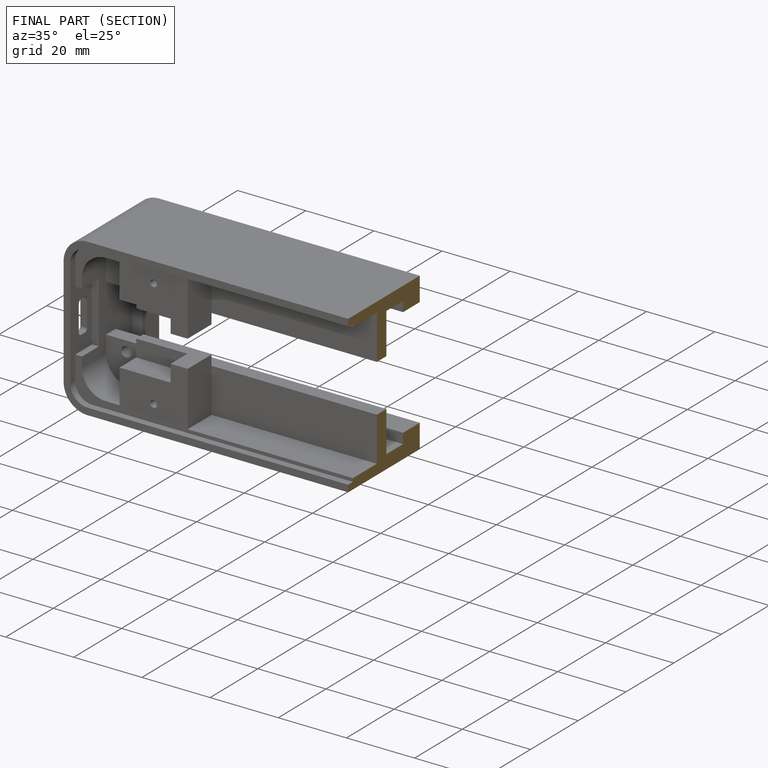
[diagram: finished part — half-section view (interior)]
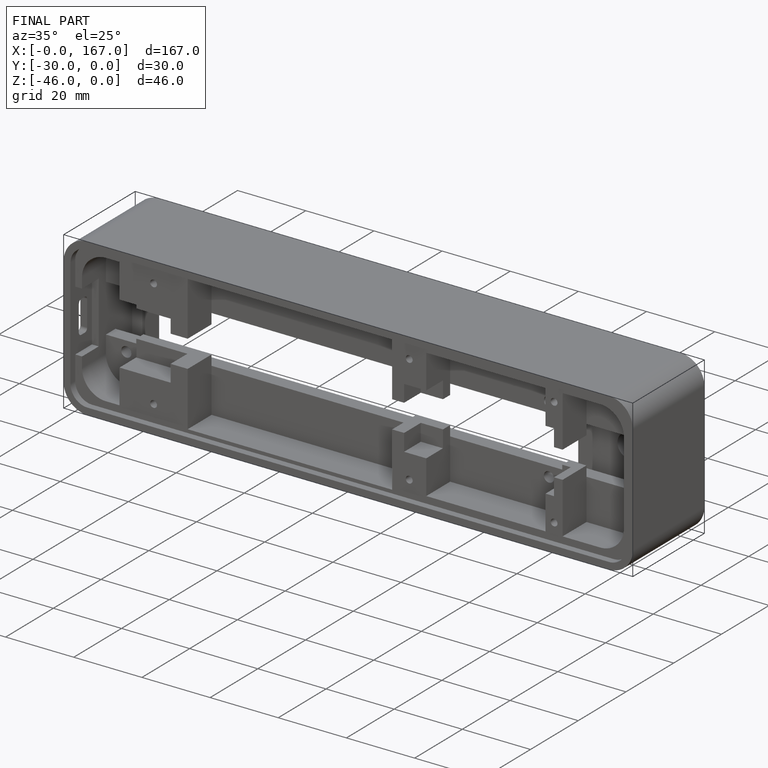
[diagram: finished part — iso view with bounding-box wireframe]
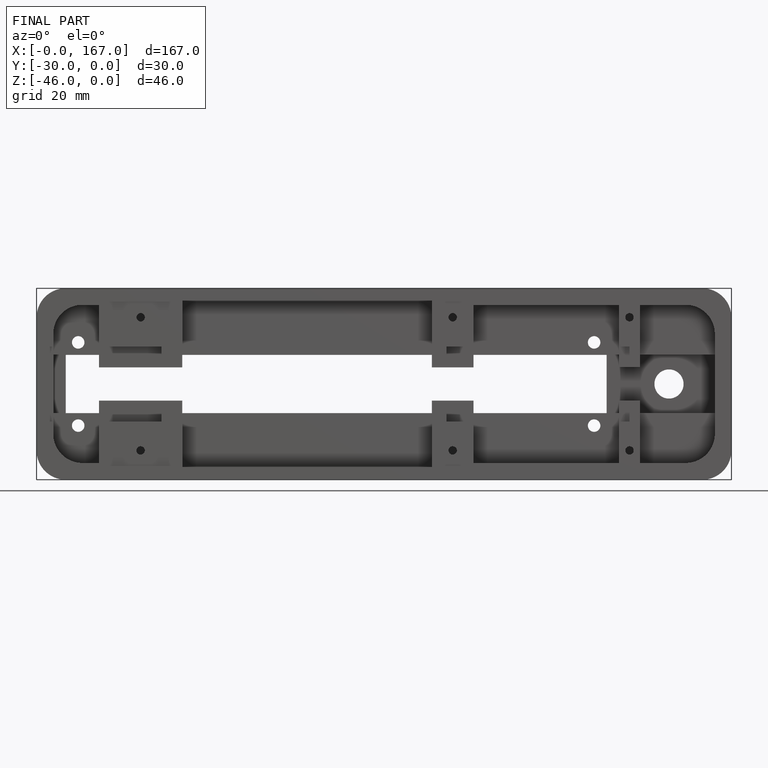
[diagram: finished part — front view with bounding-box wireframe]
